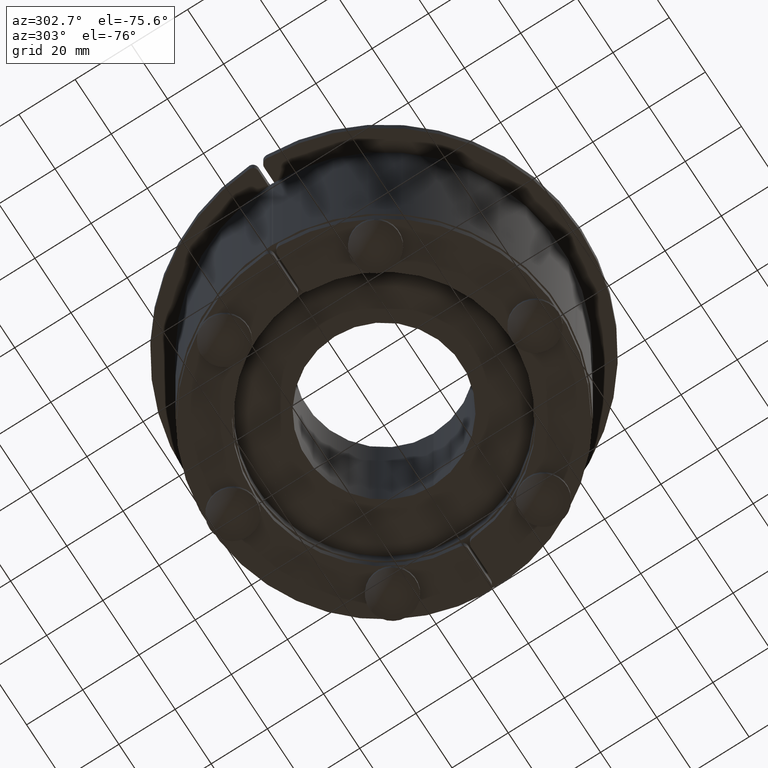
[diagram: clean part render]
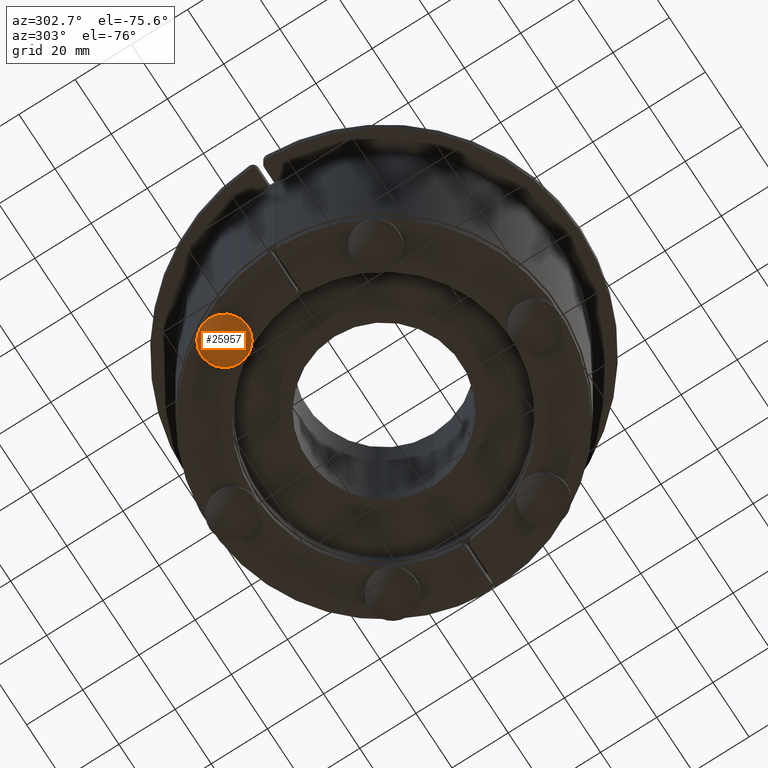
[diagram: same view with one face highlighted and labeled with its STEP entity id]
A machine part, auxiliary view. The second image highlights one B-rep face of the part: STEP entity #25957.
In plain terms, the highlighted spherical surface has radius 12.6 mm.
Its self-contained STEP definition (entity closure, byte-faithful):
#25941=CARTESIAN_POINT('',(8.720000000000002,0.0,0.0));
#25942=DIRECTION('',(0.0,0.0,1.0));
#25943=DIRECTION('',(1.0,0.0,0.0));
#25944=AXIS2_PLACEMENT_3D('',#25941,#25942,#25943);
#25945=SPHERICAL_SURFACE('',#25944,12.599999999999998);
#25946=CARTESIAN_POINT('',(-0.781809038283176,8.275000000000004,0.0));
#25947=VERTEX_POINT('',#25946);
#25948=CARTESIAN_POINT('',(-0.781809038283168,-1.301565E-032,0.0));
#25949=DIRECTION('',(1.0,0.0,0.0));
#25950=DIRECTION('',(0.0,1.0,0.0));
#25951=AXIS2_PLACEMENT_3D('',#25948,#25949,#25950);
#25952=CIRCLE('',#25951,8.275000000000004);
#25953=EDGE_CURVE('',#25947,#25947,#25952,.T.);
#25954=ORIENTED_EDGE('',*,*,#25953,.F.);
#25955=EDGE_LOOP('',(#25954));
#25956=FACE_OUTER_BOUND('',#25955,.T.);
#25957=ADVANCED_FACE('',(#25956),#25945,.T.);